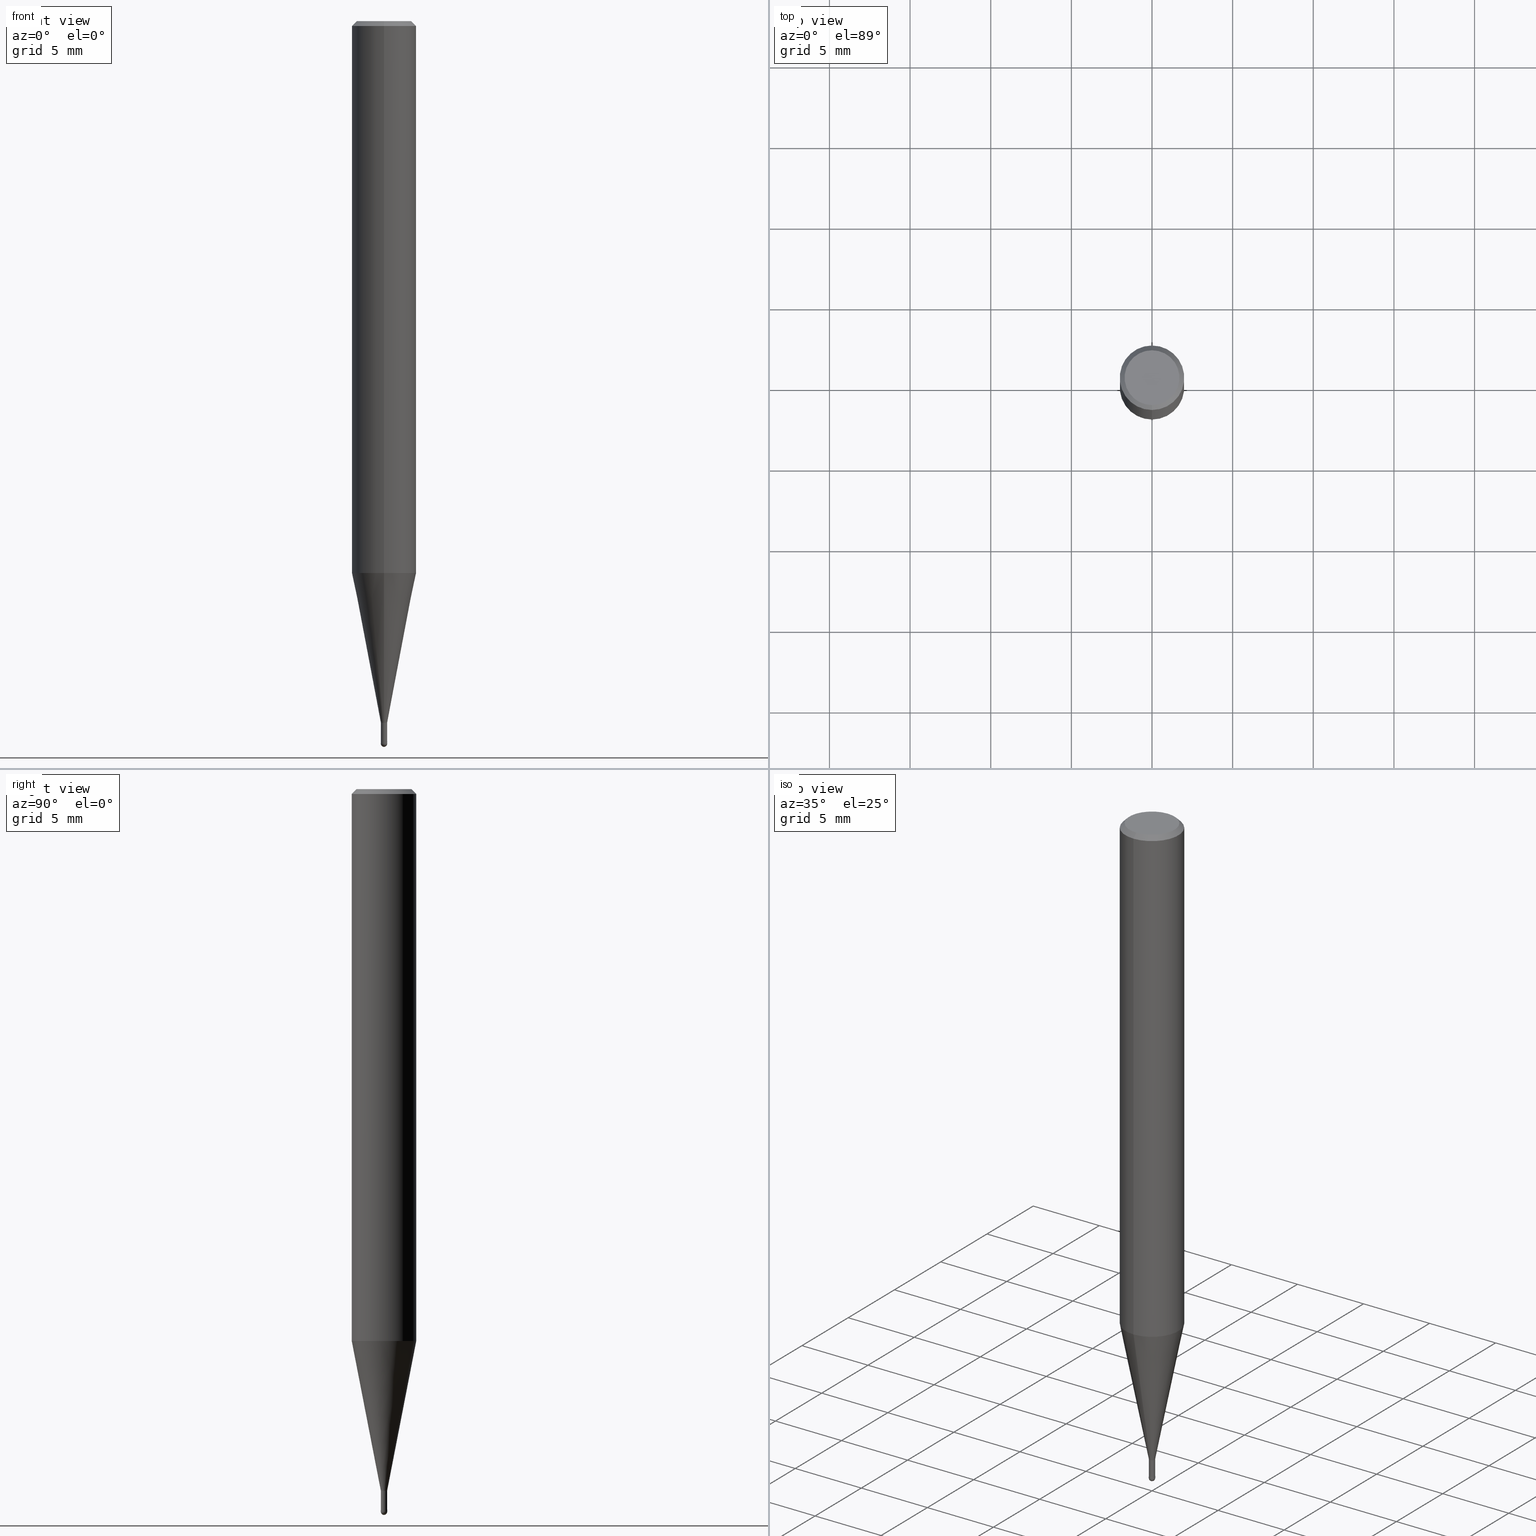
[diagram: canonical four-view strip — front | top / right | iso, engineering-drawing reading convention]
A machine part, canonical four-view strip (front | top / right | iso — engineering-drawing reading convention). The complete STEP part file that produces these views, byte-faithful:
ISO-10303-21;
HEADER;
FILE_DESCRIPTION(('no description'),'unknown implementation level');
FILE_NAME('CSELB2004-015-Huellk.stp','  ',('CIMSOURCE GmbH'),('CADClick - KiM GmbH - www.kimweb.de'),'unknown preprocess','ACIS','unknown authorization');
FILE_SCHEMA(('automotive_design'));
ENDSEC;
DATA;
#1=MECHANICAL_DESIGN_GEOMETRIC_PRESENTATION_REPRESENTATION(' ',(#14,#15,#16,#17,#18,#19,#20,#21,#22,#23,#24,#25,#26,#27,#28,#29,#30,#31,#32,#33,#34,#35,#36,#37,#38,#39,#40,#41,#42,#43,#44,#45,#46,#47,#48,#49,#50,#51,#52,#53,#54,#55,#56,#57,#58,#59,#60,#61,#62,#63,#64,#65,#66,#67,#68,#69,#70,#71,#72,#73,#74),#10);
#2=PRODUCT_DEFINITION_CONTEXT('',#75,'design');
#3=APPLICATION_PROTOCOL_DEFINITION('INTERNATIONAL STANDARD','automotive_design',1994,#75);
#4=PRODUCT_CATEGORY_RELATIONSHIP('NONE','NONE',#76,#77);
#5=SHAPE_DEFINITION_REPRESENTATION(#78,#79);
#6=PRODUCT_DEFINITION_CONTEXT('',#80,'design');
#7=APPLICATION_PROTOCOL_DEFINITION('INTERNATIONAL STANDARD','automotive_design',1994,#80);
#8=PRODUCT_CATEGORY_RELATIONSHIP('NONE','NONE',#81,#82);
#9=SHAPE_DEFINITION_REPRESENTATION(#83,#84);
#10= (GEOMETRIC_REPRESENTATION_CONTEXT(3)GLOBAL_UNCERTAINTY_ASSIGNED_CONTEXT((#87))GLOBAL_UNIT_ASSIGNED_CONTEXT((#89,#90,#91))REPRESENTATION_CONTEXT('NONE','WORKSPACE'));
#14=STYLED_ITEM('',(#93),#94);
#15=STYLED_ITEM('',(#95),#96);
#16=STYLED_ITEM('',(#97),#98);
#17=STYLED_ITEM('',(#99),#100);
#18=STYLED_ITEM('',(#101),#102);
#19=STYLED_ITEM('',(#103),#104);
#20=STYLED_ITEM('',(#105),#106);
#21=STYLED_ITEM('',(#107),#108);
#22=STYLED_ITEM('',(#109),#110);
#23=STYLED_ITEM('',(#111),#112);
#24=STYLED_ITEM('',(#113),#114);
#25=STYLED_ITEM('',(#115),#116);
#26=STYLED_ITEM('',(#117),#118);
#27=STYLED_ITEM('',(#119),#120);
#28=STYLED_ITEM('',(#121),#122);
#29=STYLED_ITEM('',(#123),#124);
#30=STYLED_ITEM('',(#125),#126);
#31=STYLED_ITEM('',(#127),#128);
#32=STYLED_ITEM('',(#129),#130);
#33=STYLED_ITEM('',(#131),#132);
#34=STYLED_ITEM('',(#133),#134);
#35=STYLED_ITEM('',(#135),#136);
#36=STYLED_ITEM('',(#137),#138);
#37=STYLED_ITEM('',(#139),#140);
#38=STYLED_ITEM('',(#141),#142);
#39=STYLED_ITEM('',(#143),#144);
#40=STYLED_ITEM('',(#145),#146);
#41=STYLED_ITEM('',(#147),#148);
#42=STYLED_ITEM('',(#149),#150);
#43=STYLED_ITEM('',(#151),#152);
#44=STYLED_ITEM('',(#153),#154);
#45=STYLED_ITEM('',(#155),#156);
#46=STYLED_ITEM('',(#157),#158);
#47=STYLED_ITEM('',(#159),#160);
#48=STYLED_ITEM('',(#161),#162);
#49=STYLED_ITEM('',(#163),#164);
#50=STYLED_ITEM('',(#165),#166);
#51=STYLED_ITEM('',(#167),#168);
#52=STYLED_ITEM('',(#169),#170);
#53=STYLED_ITEM('',(#171),#172);
#54=STYLED_ITEM('',(#173),#174);
#55=STYLED_ITEM('',(#175),#176);
#56=STYLED_ITEM('',(#177),#178);
#57=STYLED_ITEM('',(#179),#180);
#58=STYLED_ITEM('',(#181),#182);
#59=STYLED_ITEM('',(#183),#184);
#60=STYLED_ITEM('',(#185),#186);
#61=STYLED_ITEM('',(#187),#188);
#62=STYLED_ITEM('',(#189),#190);
#63=STYLED_ITEM('',(#191),#192);
#64=STYLED_ITEM('',(#193),#194);
#65=STYLED_ITEM('',(#195),#196);
#66=STYLED_ITEM('',(#197),#198);
#67=STYLED_ITEM('',(#199),#200);
#68=STYLED_ITEM('',(#201),#202);
#69=STYLED_ITEM('',(#203),#204);
#70=STYLED_ITEM('',(#205),#206);
#71=STYLED_ITEM('',(#207),#208);
#72=STYLED_ITEM('',(#209),#210);
#73=STYLED_ITEM('',(#211),#212);
#74=STYLED_ITEM('',(#213),#214);
#75=APPLICATION_CONTEXT(' ');
#76=PRODUCT_CATEGORY('part','NONE');
#77=PRODUCT_RELATED_PRODUCT_CATEGORY('detail',' ',(#215));
#78=PRODUCT_DEFINITION_SHAPE('NONE','NONE',#216);
#79=ADVANCED_BREP_SHAPE_REPRESENTATION('1',(#128,#217),#10);
#80=APPLICATION_CONTEXT(' ');
#81=PRODUCT_CATEGORY('part','NONE');
#82=PRODUCT_RELATED_PRODUCT_CATEGORY('detail',' ',(#218));
#83=PRODUCT_DEFINITION_SHAPE('NONE','NONE',#219);
#84=ADVANCED_BREP_SHAPE_REPRESENTATION('2',(#176,#220),#10);
#87=UNCERTAINTY_MEASURE_WITH_UNIT(LENGTH_MEASURE(1.0E-006),#89,'','');
#89= (CONVERSION_BASED_UNIT('MILLIMETRE',#223)LENGTH_UNIT()NAMED_UNIT(#226));
#90= (NAMED_UNIT(#228)PLANE_ANGLE_UNIT()SI_UNIT($,.RADIAN.));
#91= (NAMED_UNIT(#228)SOLID_ANGLE_UNIT()SI_UNIT($,.STERADIAN.));
#93=PRESENTATION_STYLE_ASSIGNMENT((#234));
#94=VERTEX_POINT('',#235);
#95=PRESENTATION_STYLE_ASSIGNMENT((#236));
#96=EDGE_CURVE('',#136,#120,#237,.T.);
#97=PRESENTATION_STYLE_ASSIGNMENT((#238));
#98=EDGE_CURVE('',#140,#166,#239,.T.);
#99=PRESENTATION_STYLE_ASSIGNMENT((#240));
#100=ADVANCED_FACE('',(#241,#242),#243,.T.);
#101=PRESENTATION_STYLE_ASSIGNMENT((#244));
#102=VERTEX_POINT('',#245);
#103=PRESENTATION_STYLE_ASSIGNMENT((#246));
#104=ADVANCED_FACE('',(#247),#248,.T.);
#105=PRESENTATION_STYLE_ASSIGNMENT((#249));
#106=EDGE_CURVE('',#150,#120,#250,.T.);
#107=PRESENTATION_STYLE_ASSIGNMENT((#251));
#108=EDGE_CURVE('',#94,#168,#252,.T.);
#109=PRESENTATION_STYLE_ASSIGNMENT((#253));
#110=ADVANCED_FACE('',(#254),#255,.T.);
#111=PRESENTATION_STYLE_ASSIGNMENT((#256));
#112=EDGE_CURVE('',#188,#140,#257,.T.);
#113=PRESENTATION_STYLE_ASSIGNMENT((#258));
#114=ADVANCED_FACE('',(#259),#260,.T.);
#115=PRESENTATION_STYLE_ASSIGNMENT((#261));
#116=EDGE_CURVE('',#136,#152,#262,.T.);
#117=PRESENTATION_STYLE_ASSIGNMENT((#263));
#118=EDGE_CURVE('',#102,#206,#264,.T.);
#119=PRESENTATION_STYLE_ASSIGNMENT((#265));
#120=VERTEX_POINT('',#266);
#121=PRESENTATION_STYLE_ASSIGNMENT((#267));
#122=EDGE_CURVE('',#162,#182,#268,.T.);
#123=PRESENTATION_STYLE_ASSIGNMENT((#269));
#124=ADVANCED_FACE('',(#270),#271,.T.);
#125=PRESENTATION_STYLE_ASSIGNMENT((#272));
#126=ADVANCED_FACE('',(#273),#274,.T.);
#127=PRESENTATION_STYLE_ASSIGNMENT((#275));
#128=MANIFOLD_SOLID_BREP('1',#276);
#129=PRESENTATION_STYLE_ASSIGNMENT((#277));
#130=EDGE_CURVE('',#206,#102,#278,.T.);
#131=PRESENTATION_STYLE_ASSIGNMENT((#279));
#132=ADVANCED_FACE('',(#280),#281,.T.);
#133=PRESENTATION_STYLE_ASSIGNMENT((#282));
#134=ADVANCED_FACE('',(#283),#284,.T.);
#135=PRESENTATION_STYLE_ASSIGNMENT((#285));
#136=VERTEX_POINT('',#286);
#137=PRESENTATION_STYLE_ASSIGNMENT((#287));
#138=ADVANCED_FACE('',(#288),#289,.T.);
#139=PRESENTATION_STYLE_ASSIGNMENT((#290));
#140=VERTEX_POINT('',#291);
#141=PRESENTATION_STYLE_ASSIGNMENT((#292));
#142=EDGE_CURVE('',#186,#200,#293,.T.);
#143=PRESENTATION_STYLE_ASSIGNMENT((#294));
#144=VERTEX_POINT('',#295);
#145=PRESENTATION_STYLE_ASSIGNMENT((#296));
#146=EDGE_CURVE('',#120,#206,#297,.T.);
#147=PRESENTATION_STYLE_ASSIGNMENT((#298));
#148=ADVANCED_FACE('',(#299),#300,.T.);
#149=PRESENTATION_STYLE_ASSIGNMENT((#301));
#150=VERTEX_POINT('',#302);
#151=PRESENTATION_STYLE_ASSIGNMENT((#303));
#152=VERTEX_POINT('',#304);
#153=PRESENTATION_STYLE_ASSIGNMENT((#305));
#154=EDGE_CURVE('',#150,#152,#306,.T.);
#155=PRESENTATION_STYLE_ASSIGNMENT((#307));
#156=ADVANCED_FACE('',(#308),#309,.T.);
#157=PRESENTATION_STYLE_ASSIGNMENT((#310));
#158=EDGE_CURVE('',#166,#140,#311,.T.);
#159=PRESENTATION_STYLE_ASSIGNMENT((#312));
#160=EDGE_CURVE('',#182,#162,#313,.T.);
#161=PRESENTATION_STYLE_ASSIGNMENT((#314));
#162=VERTEX_POINT('',#315);
#163=PRESENTATION_STYLE_ASSIGNMENT((#316));
#164=EDGE_CURVE('',#144,#188,#317,.T.);
#165=PRESENTATION_STYLE_ASSIGNMENT((#318));
#166=VERTEX_POINT('',#319);
#167=PRESENTATION_STYLE_ASSIGNMENT((#320));
#168=VERTEX_POINT('',#321);
#169=PRESENTATION_STYLE_ASSIGNMENT((#322));
#170=EDGE_CURVE('',#102,#150,#323,.T.);
#171=PRESENTATION_STYLE_ASSIGNMENT((#324));
#172=EDGE_CURVE('',#188,#144,#325,.T.);
#173=PRESENTATION_STYLE_ASSIGNMENT((#326));
#174=ADVANCED_FACE('',(#327),#328,.T.);
#175=PRESENTATION_STYLE_ASSIGNMENT((#329));
#176=MANIFOLD_SOLID_BREP('2',#330);
#177=PRESENTATION_STYLE_ASSIGNMENT((#331));
#178=ADVANCED_FACE('',(#332),#333,.T.);
#179=PRESENTATION_STYLE_ASSIGNMENT((#334));
#180=EDGE_CURVE('',#166,#144,#335,.T.);
#181=PRESENTATION_STYLE_ASSIGNMENT((#336));
#182=VERTEX_POINT('',#337);
#183=PRESENTATION_STYLE_ASSIGNMENT((#338));
#184=EDGE_CURVE('',#152,#136,#339,.T.);
#185=PRESENTATION_STYLE_ASSIGNMENT((#340));
#186=VERTEX_POINT('',#341);
#187=PRESENTATION_STYLE_ASSIGNMENT((#342));
#188=VERTEX_POINT('',#343);
#189=PRESENTATION_STYLE_ASSIGNMENT((#344));
#190=ADVANCED_FACE('',(#345),#346,.T.);
#191=PRESENTATION_STYLE_ASSIGNMENT((#347));
#192=EDGE_CURVE('',#200,#186,#348,.T.);
#193=PRESENTATION_STYLE_ASSIGNMENT((#349));
#194=EDGE_CURVE('',#120,#150,#350,.T.);
#195=PRESENTATION_STYLE_ASSIGNMENT((#351));
#196=EDGE_CURVE('',#94,#186,#352,.T.);
#197=PRESENTATION_STYLE_ASSIGNMENT((#353));
#198=ADVANCED_FACE('',(#354),#355,.T.);
#199=PRESENTATION_STYLE_ASSIGNMENT((#356));
#200=VERTEX_POINT('',#357);
#201=PRESENTATION_STYLE_ASSIGNMENT((#358));
#202=ADVANCED_FACE('',(#359),#360,.T.);
#203=PRESENTATION_STYLE_ASSIGNMENT((#361));
#204=EDGE_CURVE('',#200,#186,#362,.T.);
#205=PRESENTATION_STYLE_ASSIGNMENT((#363));
#206=VERTEX_POINT('',#364);
#207=PRESENTATION_STYLE_ASSIGNMENT((#365));
#208=EDGE_CURVE('',#162,#166,#366,.T.);
#209=PRESENTATION_STYLE_ASSIGNMENT((#367));
#210=EDGE_CURVE('',#168,#94,#368,.T.);
#211=PRESENTATION_STYLE_ASSIGNMENT((#369));
#212=EDGE_CURVE('',#140,#182,#370,.T.);
#213=PRESENTATION_STYLE_ASSIGNMENT((#371));
#214=EDGE_CURVE('',#200,#168,#372,.T.);
#215=PRODUCT('1','1','PART-1-DESC',(#373));
#216=PRODUCT_DEFINITION('NONE','NONE',#374,#2);
#217=AXIS2_PLACEMENT_3D('',#375,#376,#377);
#218=PRODUCT('2','2','PART-2-DESC',(#378));
#219=PRODUCT_DEFINITION('NONE','NONE',#379,#6);
#220=AXIS2_PLACEMENT_3D('',#380,#381,#382);
#223=LENGTH_MEASURE_WITH_UNIT(LENGTH_MEASURE(1.0),#383);
#226=DIMENSIONAL_EXPONENTS(1.0,0.0,0.0,0.0,0.0,0.0,0.0);
#228=DIMENSIONAL_EXPONENTS(0.0,0.0,0.0,0.0,0.0,0.0,0.0);
#234=POINT_STYLE(' ',#384,POSITIVE_LENGTH_MEASURE(1.0E-006),#385);
#235=CARTESIAN_POINT('',(0.0,0.1999,-44.68));
#236=CURVE_STYLE('',#386,POSITIVE_LENGTH_MEASURE(1.0E-006),#387);
#237=LINE('',#388,#389);
#238=CURVE_STYLE('',#390,POSITIVE_LENGTH_MEASURE(1.0E-006),#391);
#239=CIRCLE('',#392,2.0);
#240=SURFACE_STYLE_USAGE(.BOTH.,#393);
#241=FACE_OUTER_BOUND('',#394,.T.);
#242=FACE_BOUND('',#395,.T.);
#243=PLANE('',#396);
#244=POINT_STYLE(' ',#397,POSITIVE_LENGTH_MEASURE(1.0E-006),#398);
#245=CARTESIAN_POINT('',(2.38737008677672E-017,-0.19495,-44.68));
#246=SURFACE_STYLE_USAGE(.BOTH.,#399);
#247=FACE_OUTER_BOUND('',#400,.T.);
#248=SPHERICAL_SURFACE('',#401,0.2);
#249=CURVE_STYLE('',#402,POSITIVE_LENGTH_MEASURE(1.0E-006),#403);
#250=CIRCLE('',#404,0.19495);
#251=CURVE_STYLE('',#405,POSITIVE_LENGTH_MEASURE(1.0E-006),#406);
#252=CIRCLE('',#407,0.1999);
#253=SURFACE_STYLE_USAGE(.BOTH.,#408);
#254=FACE_OUTER_BOUND('',#409,.T.);
#255=PLANE('',#410);
#256=CURVE_STYLE('',#411,POSITIVE_LENGTH_MEASURE(1.0E-006),#412);
#257=LINE('',#413,#414);
#258=SURFACE_STYLE_USAGE(.BOTH.,#415);
#259=FACE_OUTER_BOUND('',#416,.T.);
#260=CYLINDRICAL_SURFACE('',#417,0.19495);
#261=CURVE_STYLE('',#418,POSITIVE_LENGTH_MEASURE(1.0E-006),#419);
#262=CIRCLE('',#420,1.99995);
#263=CURVE_STYLE('',#421,POSITIVE_LENGTH_MEASURE(1.0E-006),#422);
#264=CIRCLE('',#423,0.19495);
#265=POINT_STYLE(' ',#424,POSITIVE_LENGTH_MEASURE(1.0E-006),#425);
#266=CARTESIAN_POINT('',(0.0,0.19495,-43.5));
#267=CURVE_STYLE('',#426,POSITIVE_LENGTH_MEASURE(1.0E-006),#427);
#268=CIRCLE('',#428,1.7);
#269=SURFACE_STYLE_USAGE(.BOTH.,#429);
#270=FACE_OUTER_BOUND('',#430,.T.);
#271=PLANE('',#431);
#272=SURFACE_STYLE_USAGE(.BOTH.,#432);
#273=FACE_OUTER_BOUND('',#433,.T.);
#274=CONICAL_SURFACE('',#434,1.85,0.785398163397453);
#275=SURFACE_STYLE_USAGE(.BOTH.,#435);
#276=CLOSED_SHELL('',(#190,#178,#134,#126,#100,#148,#156,#138,#198,#114,#110));
#277=CURVE_STYLE('',#436,POSITIVE_LENGTH_MEASURE(1.0E-006),#437);
#278=CIRCLE('',#438,0.19495);
#279=SURFACE_STYLE_USAGE(.BOTH.,#439);
#280=FACE_OUTER_BOUND('',#440,.T.);
#281=CONICAL_SURFACE('',#441,0.19995,0.000833333140432319);
#282=SURFACE_STYLE_USAGE(.BOTH.,#442);
#283=FACE_OUTER_BOUND('',#443,.T.);
#284=CYLINDRICAL_SURFACE('',#444,2.0);
#285=POINT_STYLE(' ',#445,POSITIVE_LENGTH_MEASURE(1.0E-006),#446);
#286=CARTESIAN_POINT('',(0.0,1.99995,-34.214));
#287=SURFACE_STYLE_USAGE(.BOTH.,#447);
#288=FACE_OUTER_BOUND('',#448,.T.);
#289=CYLINDRICAL_SURFACE('',#449,2.0);
#290=POINT_STYLE(' ',#450,POSITIVE_LENGTH_MEASURE(1.0E-006),#451);
#291=CARTESIAN_POINT('',(2.44921270764475E-016,-2.0,-0.299999999999997));
#292=CURVE_STYLE('',#452,POSITIVE_LENGTH_MEASURE(1.0E-006),#453);
#293=CIRCLE('',#454,0.2);
#294=POINT_STYLE(' ',#455,POSITIVE_LENGTH_MEASURE(1.0E-006),#456);
#295=CARTESIAN_POINT('',(0.0,2.0,-34.214));
#296=CURVE_STYLE('',#457,POSITIVE_LENGTH_MEASURE(1.0E-006),#458);
#297=LINE('',#459,#460);
#298=SURFACE_STYLE_USAGE(.BOTH.,#461);
#299=FACE_OUTER_BOUND('',#462,.T.);
#300=PLANE('',#463);
#301=POINT_STYLE(' ',#464,POSITIVE_LENGTH_MEASURE(1.0E-006),#465);
#302=CARTESIAN_POINT('',(2.38737008677672E-017,-0.19495,-43.5));
#303=POINT_STYLE(' ',#466,POSITIVE_LENGTH_MEASURE(1.0E-006),#467);
#304=CARTESIAN_POINT('',(2.44915147732706E-016,-1.99995,-34.214));
#305=CURVE_STYLE('',#468,POSITIVE_LENGTH_MEASURE(1.0E-006),#469);
#306=LINE('',#470,#471);
#307=SURFACE_STYLE_USAGE(.BOTH.,#472);
#308=FACE_OUTER_BOUND('',#473,.T.);
#309=CONICAL_SURFACE('',#474,1.85,0.785398163397453);
#310=CURVE_STYLE('',#475,POSITIVE_LENGTH_MEASURE(1.0E-006),#476);
#311=CIRCLE('',#477,2.0);
#312=CURVE_STYLE('',#478,POSITIVE_LENGTH_MEASURE(1.0E-006),#479);
#313=CIRCLE('',#480,1.7);
#314=POINT_STYLE(' ',#481,POSITIVE_LENGTH_MEASURE(1.0E-006),#482);
#315=CARTESIAN_POINT('',(0.0,1.7,0.0));
#316=CURVE_STYLE('',#483,POSITIVE_LENGTH_MEASURE(1.0E-006),#484);
#317=CIRCLE('',#485,2.0);
#318=POINT_STYLE(' ',#486,POSITIVE_LENGTH_MEASURE(1.0E-006),#487);
#319=CARTESIAN_POINT('',(0.0,2.0,-0.299999999999997));
#320=POINT_STYLE(' ',#488,POSITIVE_LENGTH_MEASURE(1.0E-006),#489);
#321=CARTESIAN_POINT('',(2.44798810129093E-017,-0.1999,-44.68));
#322=CURVE_STYLE('',#490,POSITIVE_LENGTH_MEASURE(1.0E-006),#491);
#323=LINE('',#492,#493);
#324=CURVE_STYLE('',#494,POSITIVE_LENGTH_MEASURE(1.0E-006),#495);
#325=CIRCLE('',#496,2.0);
#326=SURFACE_STYLE_USAGE(.BOTH.,#497);
#327=FACE_OUTER_BOUND('',#498,.T.);
#328=SPHERICAL_SURFACE('',#499,0.2);
#329=SURFACE_STYLE_USAGE(.BOTH.,#500);
#330=CLOSED_SHELL('',(#104,#202,#124,#132,#174));
#331=SURFACE_STYLE_USAGE(.BOTH.,#501);
#332=FACE_OUTER_BOUND('',#502,.T.);
#333=CONICAL_SURFACE('',#503,1.09745,0.191984604054908);
#334=CURVE_STYLE('',#504,POSITIVE_LENGTH_MEASURE(1.0E-006),#505);
#335=LINE('',#506,#507);
#336=POINT_STYLE(' ',#508,POSITIVE_LENGTH_MEASURE(1.0E-006),#509);
#337=CARTESIAN_POINT('',(2.08183080149804E-016,-1.7,0.0));
#338=CURVE_STYLE('',#510,POSITIVE_LENGTH_MEASURE(1.0E-006),#511);
#339=CIRCLE('',#512,1.99995);
#340=POINT_STYLE(' ',#513,POSITIVE_LENGTH_MEASURE(1.0E-006),#514);
#341=CARTESIAN_POINT('',(0.0,0.2,-44.8));
#342=POINT_STYLE(' ',#515,POSITIVE_LENGTH_MEASURE(1.0E-006),#516);
#343=CARTESIAN_POINT('',(2.44921270764475E-016,-2.0,-34.214));
#344=SURFACE_STYLE_USAGE(.BOTH.,#517);
#345=FACE_OUTER_BOUND('',#518,.T.);
#346=CYLINDRICAL_SURFACE('',#519,0.19495);
#347=CURVE_STYLE('',#520,POSITIVE_LENGTH_MEASURE(1.0E-006),#521);
#348=CIRCLE('',#522,0.2);
#349=CURVE_STYLE('',#523,POSITIVE_LENGTH_MEASURE(1.0E-006),#524);
#350=CIRCLE('',#525,0.19495);
#351=CURVE_STYLE('',#526,POSITIVE_LENGTH_MEASURE(1.0E-006),#527);
#352=LINE('',#528,#529);
#353=SURFACE_STYLE_USAGE(.BOTH.,#530);
#354=FACE_OUTER_BOUND('',#531,.T.);
#355=CONICAL_SURFACE('',#532,1.09745,0.191984604054908);
#356=POINT_STYLE(' ',#533,POSITIVE_LENGTH_MEASURE(1.0E-006),#534);
#357=CARTESIAN_POINT('',(2.44921270764475E-017,-0.2,-44.8));
#358=SURFACE_STYLE_USAGE(.BOTH.,#535);
#359=FACE_OUTER_BOUND('',#536,.T.);
#360=CONICAL_SURFACE('',#537,0.19995,0.000833333140432319);
#361=CURVE_STYLE('',#538,POSITIVE_LENGTH_MEASURE(1.0E-006),#539);
#362=CIRCLE('',#540,0.2);
#363=POINT_STYLE(' ',#541,POSITIVE_LENGTH_MEASURE(1.0E-006),#542);
#364=CARTESIAN_POINT('',(0.0,0.19495,-44.68));
#365=CURVE_STYLE('',#543,POSITIVE_LENGTH_MEASURE(1.0E-006),#544);
#366=LINE('',#545,#546);
#367=CURVE_STYLE('',#547,POSITIVE_LENGTH_MEASURE(1.0E-006),#548);
#368=CIRCLE('',#549,0.1999);
#369=CURVE_STYLE('',#550,POSITIVE_LENGTH_MEASURE(1.0E-006),#551);
#370=LINE('',#552,#553);
#371=CURVE_STYLE('',#554,POSITIVE_LENGTH_MEASURE(1.0E-006),#555);
#372=LINE('',#556,#557);
#373=PRODUCT_CONTEXT('',#75,'mechanical');
#374=PRODUCT_DEFINITION_FORMATION_WITH_SPECIFIED_SOURCE(' ','NONE',#215,.NOT_KNOWN.);
#375=CARTESIAN_POINT('',(0.0,0.0,0.0));
#376=DIRECTION('',(0.0,0.0,1.0));
#377=DIRECTION('',(1.0,0.0,0.0));
#378=PRODUCT_CONTEXT('',#80,'mechanical');
#379=PRODUCT_DEFINITION_FORMATION_WITH_SPECIFIED_SOURCE(' ','NONE',#218,.NOT_KNOWN.);
#380=CARTESIAN_POINT('',(0.0,0.0,0.0));
#381=DIRECTION('',(0.0,0.0,1.0));
#382=DIRECTION('',(1.0,0.0,0.0));
#383= (NAMED_UNIT(#226)LENGTH_UNIT()SI_UNIT(.MILLI.,.METRE.));
#384=PRE_DEFINED_MARKER('');
#385=COLOUR_RGB('',0.800000011920929,0.800000011920929,0.800000011920929);
#386=DRAUGHTING_PRE_DEFINED_CURVE_FONT('continuous');
#387=COLOUR_RGB('',0.498039215803146,0.498039215803146,0.498039215803146);
#388=CARTESIAN_POINT('',(-1.34394424300237E-016,1.09745,-38.857));
#389=VECTOR('',#559,1.0);
#390=DRAUGHTING_PRE_DEFINED_CURVE_FONT('continuous');
#391=COLOUR_RGB('',0.498039215803146,0.498039215803146,0.498039215803146);
#392=AXIS2_PLACEMENT_3D('',#560,#561,#562);
#393=SURFACE_SIDE_STYLE('',(#563));
#394=EDGE_LOOP('',(#564,#565));
#395=EDGE_LOOP('',(#566,#567));
#396=AXIS2_PLACEMENT_3D('',#568,#569,#570);
#397=PRE_DEFINED_MARKER('');
#398=COLOUR_RGB('',0.498039215803146,0.498039215803146,0.498039215803146);
#399=SURFACE_SIDE_STYLE('',(#571));
#400=EDGE_LOOP('',(#572,#573));
#401=AXIS2_PLACEMENT_3D('',#574,#575,#576);
#402=DRAUGHTING_PRE_DEFINED_CURVE_FONT('continuous');
#403=COLOUR_RGB('',0.498039215803146,0.498039215803146,0.498039215803146);
#404=AXIS2_PLACEMENT_3D('',#577,#578,#579);
#405=DRAUGHTING_PRE_DEFINED_CURVE_FONT('continuous');
#406=COLOUR_RGB('',0.800000011920929,0.800000011920929,0.800000011920929);
#407=AXIS2_PLACEMENT_3D('',#580,#581,#582);
#408=SURFACE_SIDE_STYLE('',(#583));
#409=EDGE_LOOP('',(#584,#585));
#410=AXIS2_PLACEMENT_3D('',#586,#587,#588);
#411=DRAUGHTING_PRE_DEFINED_CURVE_FONT('continuous');
#412=COLOUR_RGB('',0.498039215803146,0.498039215803146,0.498039215803146);
#413=CARTESIAN_POINT('',(2.44921270764475E-016,-2.0,-17.257));
#414=VECTOR('',#589,1.0);
#415=SURFACE_SIDE_STYLE('',(#590));
#416=EDGE_LOOP('',(#591,#592,#593,#594));
#417=AXIS2_PLACEMENT_3D('',#595,#596,#597);
#418=DRAUGHTING_PRE_DEFINED_CURVE_FONT('continuous');
#419=COLOUR_RGB('',0.498039215803146,0.498039215803146,0.498039215803146);
#420=AXIS2_PLACEMENT_3D('',#598,#599,#600);
#421=DRAUGHTING_PRE_DEFINED_CURVE_FONT('continuous');
#422=COLOUR_RGB('',0.498039215803146,0.498039215803146,0.498039215803146);
#423=AXIS2_PLACEMENT_3D('',#601,#602,#603);
#424=PRE_DEFINED_MARKER('');
#425=COLOUR_RGB('',0.498039215803146,0.498039215803146,0.498039215803146);
#426=DRAUGHTING_PRE_DEFINED_CURVE_FONT('continuous');
#427=COLOUR_RGB('',0.498039215803146,0.498039215803146,0.498039215803146);
#428=AXIS2_PLACEMENT_3D('',#604,#605,#606);
#429=SURFACE_SIDE_STYLE('',(#607));
#430=EDGE_LOOP('',(#608,#609));
#431=AXIS2_PLACEMENT_3D('',#610,#611,#612);
#432=SURFACE_SIDE_STYLE('',(#613));
#433=EDGE_LOOP('',(#614,#615,#616,#617));
#434=AXIS2_PLACEMENT_3D('',#618,#619,#620);
#435=SURFACE_SIDE_STYLE('',(#621));
#436=DRAUGHTING_PRE_DEFINED_CURVE_FONT('continuous');
#437=COLOUR_RGB('',0.498039215803146,0.498039215803146,0.498039215803146);
#438=AXIS2_PLACEMENT_3D('',#622,#623,#624);
#439=SURFACE_SIDE_STYLE('',(#625));
#440=EDGE_LOOP('',(#626,#627,#628,#629));
#441=AXIS2_PLACEMENT_3D('',#630,#631,#632);
#442=SURFACE_SIDE_STYLE('',(#633));
#443=EDGE_LOOP('',(#634,#635,#636,#637));
#444=AXIS2_PLACEMENT_3D('',#638,#639,#640);
#445=PRE_DEFINED_MARKER('');
#446=COLOUR_RGB('',0.498039215803146,0.498039215803146,0.498039215803146);
#447=SURFACE_SIDE_STYLE('',(#641));
#448=EDGE_LOOP('',(#642,#643,#644,#645));
#449=AXIS2_PLACEMENT_3D('',#646,#647,#648);
#450=PRE_DEFINED_MARKER('');
#451=COLOUR_RGB('',0.498039215803146,0.498039215803146,0.498039215803146);
#452=DRAUGHTING_PRE_DEFINED_CURVE_FONT('continuous');
#453=COLOUR_RGB('',0.800000011920929,0.800000011920929,0.800000011920929);
#454=AXIS2_PLACEMENT_3D('',#649,#650,#651);
#455=PRE_DEFINED_MARKER('');
#456=COLOUR_RGB('',0.498039215803146,0.498039215803146,0.498039215803146);
#457=DRAUGHTING_PRE_DEFINED_CURVE_FONT('continuous');
#458=COLOUR_RGB('',0.498039215803146,0.498039215803146,0.498039215803146);
#459=CARTESIAN_POINT('',(-2.38737008677672E-017,0.19495,-44.09));
#460=VECTOR('',#652,1.0);
#461=SURFACE_SIDE_STYLE('',(#653));
#462=EDGE_LOOP('',(#654,#655));
#463=AXIS2_PLACEMENT_3D('',#656,#657,#658);
#464=PRE_DEFINED_MARKER('');
#465=COLOUR_RGB('',0.498039215803146,0.498039215803146,0.498039215803146);
#466=PRE_DEFINED_MARKER('');
#467=COLOUR_RGB('',0.498039215803146,0.498039215803146,0.498039215803146);
#468=DRAUGHTING_PRE_DEFINED_CURVE_FONT('continuous');
#469=COLOUR_RGB('',0.498039215803146,0.498039215803146,0.498039215803146);
#470=CARTESIAN_POINT('',(1.34394424300237E-016,-1.09745,-38.857));
#471=VECTOR('',#659,1.0);
#472=SURFACE_SIDE_STYLE('',(#660));
#473=EDGE_LOOP('',(#661,#662,#663,#664));
#474=AXIS2_PLACEMENT_3D('',#665,#666,#667);
#475=DRAUGHTING_PRE_DEFINED_CURVE_FONT('continuous');
#476=COLOUR_RGB('',0.498039215803146,0.498039215803146,0.498039215803146);
#477=AXIS2_PLACEMENT_3D('',#668,#669,#670);
#478=DRAUGHTING_PRE_DEFINED_CURVE_FONT('continuous');
#479=COLOUR_RGB('',0.498039215803146,0.498039215803146,0.498039215803146);
#480=AXIS2_PLACEMENT_3D('',#671,#672,#673);
#481=PRE_DEFINED_MARKER('');
#482=COLOUR_RGB('',0.498039215803146,0.498039215803146,0.498039215803146);
#483=DRAUGHTING_PRE_DEFINED_CURVE_FONT('continuous');
#484=COLOUR_RGB('',0.498039215803146,0.498039215803146,0.498039215803146);
#485=AXIS2_PLACEMENT_3D('',#674,#675,#676);
#486=PRE_DEFINED_MARKER('');
#487=COLOUR_RGB('',0.498039215803146,0.498039215803146,0.498039215803146);
#488=PRE_DEFINED_MARKER('');
#489=COLOUR_RGB('',0.800000011920929,0.800000011920929,0.800000011920929);
#490=DRAUGHTING_PRE_DEFINED_CURVE_FONT('continuous');
#491=COLOUR_RGB('',0.498039215803146,0.498039215803146,0.498039215803146);
#492=CARTESIAN_POINT('',(2.38737008677672E-017,-0.19495,-44.09));
#493=VECTOR('',#677,1.0);
#494=DRAUGHTING_PRE_DEFINED_CURVE_FONT('continuous');
#495=COLOUR_RGB('',0.498039215803146,0.498039215803146,0.498039215803146);
#496=AXIS2_PLACEMENT_3D('',#678,#679,#680);
#497=SURFACE_SIDE_STYLE('',(#681));
#498=EDGE_LOOP('',(#682,#683));
#499=AXIS2_PLACEMENT_3D('',#684,#685,#686);
#500=SURFACE_SIDE_STYLE('',(#687));
#501=SURFACE_SIDE_STYLE('',(#688));
#502=EDGE_LOOP('',(#689,#690,#691,#692));
#503=AXIS2_PLACEMENT_3D('',#693,#694,#695);
#504=DRAUGHTING_PRE_DEFINED_CURVE_FONT('continuous');
#505=COLOUR_RGB('',0.498039215803146,0.498039215803146,0.498039215803146);
#506=CARTESIAN_POINT('',(-2.44921270764475E-016,2.0,-17.257));
#507=VECTOR('',#696,1.0);
#508=PRE_DEFINED_MARKER('');
#509=COLOUR_RGB('',0.498039215803146,0.498039215803146,0.498039215803146);
#510=DRAUGHTING_PRE_DEFINED_CURVE_FONT('continuous');
#511=COLOUR_RGB('',0.498039215803146,0.498039215803146,0.498039215803146);
#512=AXIS2_PLACEMENT_3D('',#697,#698,#699);
#513=PRE_DEFINED_MARKER('');
#514=COLOUR_RGB('',0.800000011920929,0.800000011920929,0.800000011920929);
#515=PRE_DEFINED_MARKER('');
#516=COLOUR_RGB('',0.498039215803146,0.498039215803146,0.498039215803146);
#517=SURFACE_SIDE_STYLE('',(#700));
#518=EDGE_LOOP('',(#701,#702,#703,#704));
#519=AXIS2_PLACEMENT_3D('',#705,#706,#707);
#520=DRAUGHTING_PRE_DEFINED_CURVE_FONT('continuous');
#521=COLOUR_RGB('',0.800000011920929,0.800000011920929,0.800000011920929);
#522=AXIS2_PLACEMENT_3D('',#708,#709,#710);
#523=DRAUGHTING_PRE_DEFINED_CURVE_FONT('continuous');
#524=COLOUR_RGB('',0.498039215803146,0.498039215803146,0.498039215803146);
#525=AXIS2_PLACEMENT_3D('',#711,#712,#713);
#526=DRAUGHTING_PRE_DEFINED_CURVE_FONT('continuous');
#527=COLOUR_RGB('',0.800000011920929,0.800000011920929,0.800000011920929);
#528=CARTESIAN_POINT('',(-2.44860040446784E-017,0.19995,-44.74));
#529=VECTOR('',#714,1.0);
#530=SURFACE_SIDE_STYLE('',(#715));
#531=EDGE_LOOP('',(#716,#717,#718,#719));
#532=AXIS2_PLACEMENT_3D('',#720,#721,#722);
#533=PRE_DEFINED_MARKER('');
#534=COLOUR_RGB('',0.800000011920929,0.800000011920929,0.800000011920929);
#535=SURFACE_SIDE_STYLE('',(#723));
#536=EDGE_LOOP('',(#724,#725,#726,#727));
#537=AXIS2_PLACEMENT_3D('',#728,#729,#730);
#538=DRAUGHTING_PRE_DEFINED_CURVE_FONT('continuous');
#539=COLOUR_RGB('',0.800000011920929,0.800000011920929,0.800000011920929);
#540=AXIS2_PLACEMENT_3D('',#731,#732,#733);
#541=PRE_DEFINED_MARKER('');
#542=COLOUR_RGB('',0.498039215803146,0.498039215803146,0.498039215803146);
#543=DRAUGHTING_PRE_DEFINED_CURVE_FONT('continuous');
#544=COLOUR_RGB('',0.498039215803146,0.498039215803146,0.498039215803146);
#545=CARTESIAN_POINT('',(-2.2655217545714E-016,1.85,-0.149999999999999));
#546=VECTOR('',#734,1.0);
#547=DRAUGHTING_PRE_DEFINED_CURVE_FONT('continuous');
#548=COLOUR_RGB('',0.800000011920929,0.800000011920929,0.800000011920929);
#549=AXIS2_PLACEMENT_3D('',#735,#736,#737);
#550=DRAUGHTING_PRE_DEFINED_CURVE_FONT('continuous');
#551=COLOUR_RGB('',0.498039215803146,0.498039215803146,0.498039215803146);
#552=CARTESIAN_POINT('',(2.2655217545714E-016,-1.85,-0.149999999999999));
#553=VECTOR('',#738,1.0);
#554=DRAUGHTING_PRE_DEFINED_CURVE_FONT('continuous');
#555=COLOUR_RGB('',0.800000011920929,0.800000011920929,0.800000011920929);
#556=CARTESIAN_POINT('',(2.44860040446784E-017,-0.19995,-44.74));
#557=VECTOR('',#739,1.0);
#559=DIRECTION('',(2.33663968307108E-017,-0.190807411359389,-0.981627491348082));
#560=CARTESIAN_POINT('',(0.0,0.0,-0.299999999999997));
#561=DIRECTION('',(0.0,0.0,-1.0));
#562=DIRECTION('',(0.0,1.0,0.0));
#563=SURFACE_STYLE_FILL_AREA(#740);
#564=ORIENTED_EDGE('',*,*,#164,.T.);
#565=ORIENTED_EDGE('',*,*,#172,.T.);
#566=ORIENTED_EDGE('',*,*,#116,.F.);
#567=ORIENTED_EDGE('',*,*,#184,.F.);
#568=CARTESIAN_POINT('',(0.0,1.0,-34.214));
#569=DIRECTION('',(0.0,0.0,-1.0));
#570=DIRECTION('',(0.0,1.0,0.0));
#571=SURFACE_STYLE_FILL_AREA(#741);
#572=ORIENTED_EDGE('',*,*,#192,.F.);
#573=ORIENTED_EDGE('',*,*,#204,.T.);
#574=CARTESIAN_POINT('',(0.0,0.0,-44.8));
#575=DIRECTION('',(0.0,1.0,0.0));
#576=DIRECTION('',(0.0,0.0,-1.0));
#577=CARTESIAN_POINT('',(0.0,0.0,-43.5));
#578=DIRECTION('',(0.0,0.0,-1.0));
#579=DIRECTION('',(0.0,1.0,0.0));
#580=CARTESIAN_POINT('',(0.0,0.0,-44.68));
#581=DIRECTION('',(0.0,0.0,-1.0));
#582=DIRECTION('',(0.0,1.0,0.0));
#583=SURFACE_STYLE_FILL_AREA(#742);
#584=ORIENTED_EDGE('',*,*,#130,.T.);
#585=ORIENTED_EDGE('',*,*,#118,.T.);
#586=CARTESIAN_POINT('',(0.0,0.097475,-44.68));
#587=DIRECTION('',(0.0,0.0,-1.0));
#588=DIRECTION('',(0.0,1.0,0.0));
#589=DIRECTION('',(-0.0,-0.0,1.0));
#590=SURFACE_STYLE_FILL_AREA(#743);
#591=ORIENTED_EDGE('',*,*,#146,.T.);
#592=ORIENTED_EDGE('',*,*,#118,.F.);
#593=ORIENTED_EDGE('',*,*,#170,.T.);
#594=ORIENTED_EDGE('',*,*,#106,.T.);
#595=CARTESIAN_POINT('',(0.0,0.0,-44.09));
#596=DIRECTION('',(-0.0,-0.0,1.0));
#597=DIRECTION('',(0.0,1.0,0.0));
#598=CARTESIAN_POINT('',(0.0,0.0,-34.214));
#599=DIRECTION('',(0.0,0.0,-1.0));
#600=DIRECTION('',(0.0,1.0,0.0));
#601=CARTESIAN_POINT('',(0.0,0.0,-44.68));
#602=DIRECTION('',(0.0,0.0,-1.0));
#603=DIRECTION('',(0.0,1.0,0.0));
#604=CARTESIAN_POINT('',(0.0,0.0,0.0));
#605=DIRECTION('',(0.0,0.0,-1.0));
#606=DIRECTION('',(0.0,1.0,0.0));
#607=SURFACE_STYLE_FILL_AREA(#744);
#608=ORIENTED_EDGE('',*,*,#108,.F.);
#609=ORIENTED_EDGE('',*,*,#210,.F.);
#610=CARTESIAN_POINT('',(0.0,0.09995,-44.68));
#611=DIRECTION('',(-0.0,0.0,1.0));
#612=DIRECTION('',(0.0,-1.0,0.0));
#613=SURFACE_STYLE_FILL_AREA(#745);
#614=ORIENTED_EDGE('',*,*,#208,.F.);
#615=ORIENTED_EDGE('',*,*,#122,.T.);
#616=ORIENTED_EDGE('',*,*,#212,.F.);
#617=ORIENTED_EDGE('',*,*,#158,.F.);
#618=CARTESIAN_POINT('',(0.0,0.0,-0.149999999999999));
#619=DIRECTION('',(0.0,-0.0,-1.0));
#620=DIRECTION('',(0.0,1.0,0.0));
#621=SURFACE_STYLE_FILL_AREA(#746);
#622=CARTESIAN_POINT('',(0.0,0.0,-44.68));
#623=DIRECTION('',(0.0,0.0,-1.0));
#624=DIRECTION('',(0.0,1.0,0.0));
#625=SURFACE_STYLE_FILL_AREA(#747);
#626=ORIENTED_EDGE('',*,*,#196,.T.);
#627=ORIENTED_EDGE('',*,*,#204,.F.);
#628=ORIENTED_EDGE('',*,*,#214,.T.);
#629=ORIENTED_EDGE('',*,*,#210,.T.);
#630=CARTESIAN_POINT('',(0.0,0.0,-44.74));
#631=DIRECTION('',(0.0,-0.0,-1.0));
#632=DIRECTION('',(0.0,1.0,0.0));
#633=SURFACE_STYLE_FILL_AREA(#748);
#634=ORIENTED_EDGE('',*,*,#180,.F.);
#635=ORIENTED_EDGE('',*,*,#158,.T.);
#636=ORIENTED_EDGE('',*,*,#112,.F.);
#637=ORIENTED_EDGE('',*,*,#164,.F.);
#638=CARTESIAN_POINT('',(0.0,0.0,-17.257));
#639=DIRECTION('',(-0.0,-0.0,1.0));
#640=DIRECTION('',(0.0,1.0,0.0));
#641=SURFACE_STYLE_FILL_AREA(#749);
#642=ORIENTED_EDGE('',*,*,#180,.T.);
#643=ORIENTED_EDGE('',*,*,#172,.F.);
#644=ORIENTED_EDGE('',*,*,#112,.T.);
#645=ORIENTED_EDGE('',*,*,#98,.T.);
#646=CARTESIAN_POINT('',(0.0,0.0,-17.257));
#647=DIRECTION('',(-0.0,-0.0,1.0));
#648=DIRECTION('',(0.0,1.0,0.0));
#649=CARTESIAN_POINT('',(0.0,0.0,-44.8));
#650=DIRECTION('',(0.0,0.0,-1.0));
#651=DIRECTION('',(0.0,1.0,0.0));
#652=DIRECTION('',(0.0,0.0,-1.0));
#653=SURFACE_STYLE_FILL_AREA(#750);
#654=ORIENTED_EDGE('',*,*,#122,.F.);
#655=ORIENTED_EDGE('',*,*,#160,.F.);
#656=CARTESIAN_POINT('',(0.0,0.85,0.0));
#657=DIRECTION('',(-0.0,0.0,1.0));
#658=DIRECTION('',(0.0,-1.0,0.0));
#659=DIRECTION('',(2.33663968307108E-017,-0.190807411359389,0.981627491348082));
#660=SURFACE_STYLE_FILL_AREA(#751);
#661=ORIENTED_EDGE('',*,*,#208,.T.);
#662=ORIENTED_EDGE('',*,*,#98,.F.);
#663=ORIENTED_EDGE('',*,*,#212,.T.);
#664=ORIENTED_EDGE('',*,*,#160,.T.);
#665=CARTESIAN_POINT('',(0.0,0.0,-0.149999999999999));
#666=DIRECTION('',(0.0,-0.0,-1.0));
#667=DIRECTION('',(0.0,1.0,0.0));
#668=CARTESIAN_POINT('',(0.0,0.0,-0.299999999999997));
#669=DIRECTION('',(0.0,0.0,-1.0));
#670=DIRECTION('',(0.0,1.0,0.0));
#671=CARTESIAN_POINT('',(0.0,0.0,0.0));
#672=DIRECTION('',(0.0,0.0,-1.0));
#673=DIRECTION('',(0.0,1.0,0.0));
#674=CARTESIAN_POINT('',(0.0,0.0,-34.214));
#675=DIRECTION('',(0.0,0.0,-1.0));
#676=DIRECTION('',(0.0,1.0,0.0));
#677=DIRECTION('',(-0.0,-0.0,1.0));
#678=CARTESIAN_POINT('',(0.0,0.0,-34.214));
#679=DIRECTION('',(0.0,0.0,-1.0));
#680=DIRECTION('',(0.0,1.0,0.0));
#681=SURFACE_STYLE_FILL_AREA(#752);
#682=ORIENTED_EDGE('',*,*,#192,.T.);
#683=ORIENTED_EDGE('',*,*,#142,.T.);
#684=CARTESIAN_POINT('',(0.0,0.0,-44.8));
#685=DIRECTION('',(0.0,1.0,0.0));
#686=DIRECTION('',(0.0,0.0,-1.0));
#687=SURFACE_STYLE_FILL_AREA(#753);
#688=SURFACE_STYLE_FILL_AREA(#754);
#689=ORIENTED_EDGE('',*,*,#96,.F.);
#690=ORIENTED_EDGE('',*,*,#116,.T.);
#691=ORIENTED_EDGE('',*,*,#154,.F.);
#692=ORIENTED_EDGE('',*,*,#194,.F.);
#693=CARTESIAN_POINT('',(0.0,0.0,-38.857));
#694=DIRECTION('',(-0.0,-0.0,1.0));
#695=DIRECTION('',(0.0,1.0,0.0));
#696=DIRECTION('',(0.0,0.0,-1.0));
#697=CARTESIAN_POINT('',(0.0,0.0,-34.214));
#698=DIRECTION('',(0.0,0.0,-1.0));
#699=DIRECTION('',(0.0,1.0,0.0));
#700=SURFACE_STYLE_FILL_AREA(#755);
#701=ORIENTED_EDGE('',*,*,#146,.F.);
#702=ORIENTED_EDGE('',*,*,#194,.T.);
#703=ORIENTED_EDGE('',*,*,#170,.F.);
#704=ORIENTED_EDGE('',*,*,#130,.F.);
#705=CARTESIAN_POINT('',(0.0,0.0,-44.09));
#706=DIRECTION('',(-0.0,-0.0,1.0));
#707=DIRECTION('',(0.0,1.0,0.0));
#708=CARTESIAN_POINT('',(0.0,0.0,-44.8));
#709=DIRECTION('',(1.0,0.0,1.22460635382236E-016));
#710=DIRECTION('',(-1.22460635382236E-016,0.0,1.0));
#711=CARTESIAN_POINT('',(0.0,0.0,-43.5));
#712=DIRECTION('',(0.0,0.0,-1.0));
#713=DIRECTION('',(0.0,1.0,0.0));
#714=DIRECTION('',(-1.02050494051022E-019,0.000833333043981772,-0.999999652777959));
#715=SURFACE_STYLE_FILL_AREA(#756);
#716=ORIENTED_EDGE('',*,*,#96,.T.);
#717=ORIENTED_EDGE('',*,*,#106,.F.);
#718=ORIENTED_EDGE('',*,*,#154,.T.);
#719=ORIENTED_EDGE('',*,*,#184,.T.);
#720=CARTESIAN_POINT('',(0.0,0.0,-38.857));
#721=DIRECTION('',(-0.0,-0.0,1.0));
#722=DIRECTION('',(0.0,1.0,0.0));
#723=SURFACE_STYLE_FILL_AREA(#757);
#724=ORIENTED_EDGE('',*,*,#196,.F.);
#725=ORIENTED_EDGE('',*,*,#108,.T.);
#726=ORIENTED_EDGE('',*,*,#214,.F.);
#727=ORIENTED_EDGE('',*,*,#142,.F.);
#728=CARTESIAN_POINT('',(0.0,0.0,-44.74));
#729=DIRECTION('',(0.0,-0.0,-1.0));
#730=DIRECTION('',(0.0,1.0,0.0));
#731=CARTESIAN_POINT('',(0.0,0.0,-44.8));
#732=DIRECTION('',(0.0,0.0,-1.0));
#733=DIRECTION('',(0.0,1.0,0.0));
#734=DIRECTION('',(-8.6592745707194E-017,0.707106781186551,-0.707106781186544));
#735=CARTESIAN_POINT('',(0.0,0.0,-44.68));
#736=DIRECTION('',(0.0,0.0,-1.0));
#737=DIRECTION('',(0.0,1.0,0.0));
#738=DIRECTION('',(-8.6592745707194E-017,0.707106781186551,0.707106781186544));
#739=DIRECTION('',(-1.02050494051022E-019,0.000833333043981772,0.999999652777959));
#740=FILL_AREA_STYLE('',(#758));
#741=FILL_AREA_STYLE('',(#759));
#742=FILL_AREA_STYLE('',(#760));
#743=FILL_AREA_STYLE('',(#761));
#744=FILL_AREA_STYLE('',(#762));
#745=FILL_AREA_STYLE('',(#763));
#746=FILL_AREA_STYLE('',(#764));
#747=FILL_AREA_STYLE('',(#765));
#748=FILL_AREA_STYLE('',(#766));
#749=FILL_AREA_STYLE('',(#767));
#750=FILL_AREA_STYLE('',(#768));
#751=FILL_AREA_STYLE('',(#769));
#752=FILL_AREA_STYLE('',(#770));
#753=FILL_AREA_STYLE('',(#771));
#754=FILL_AREA_STYLE('',(#772));
#755=FILL_AREA_STYLE('',(#773));
#756=FILL_AREA_STYLE('',(#774));
#757=FILL_AREA_STYLE('',(#775));
#758=FILL_AREA_STYLE_COLOUR('',#776);
#759=FILL_AREA_STYLE_COLOUR('',#777);
#760=FILL_AREA_STYLE_COLOUR('',#778);
#761=FILL_AREA_STYLE_COLOUR('',#779);
#762=FILL_AREA_STYLE_COLOUR('',#780);
#763=FILL_AREA_STYLE_COLOUR('',#781);
#764=FILL_AREA_STYLE_COLOUR('',#782);
#765=FILL_AREA_STYLE_COLOUR('',#783);
#766=FILL_AREA_STYLE_COLOUR('',#784);
#767=FILL_AREA_STYLE_COLOUR('',#785);
#768=FILL_AREA_STYLE_COLOUR('',#786);
#769=FILL_AREA_STYLE_COLOUR('',#787);
#770=FILL_AREA_STYLE_COLOUR('',#788);
#771=FILL_AREA_STYLE_COLOUR('',#789);
#772=FILL_AREA_STYLE_COLOUR('',#790);
#773=FILL_AREA_STYLE_COLOUR('',#791);
#774=FILL_AREA_STYLE_COLOUR('',#792);
#775=FILL_AREA_STYLE_COLOUR('',#793);
#776=COLOUR_RGB('',0.498039215803146,0.498039215803146,0.498039215803146);
#777=COLOUR_RGB('',0.800000011920929,0.800000011920929,0.800000011920929);
#778=COLOUR_RGB('',0.498039215803146,0.498039215803146,0.498039215803146);
#779=COLOUR_RGB('',0.498039215803146,0.498039215803146,0.498039215803146);
#780=COLOUR_RGB('',0.800000011920929,0.800000011920929,0.800000011920929);
#781=COLOUR_RGB('',0.498039215803146,0.498039215803146,0.498039215803146);
#782=COLOUR_RGB('',0.498039215803146,0.498039215803146,0.498039215803146);
#783=COLOUR_RGB('',0.800000011920929,0.800000011920929,0.800000011920929);
#784=COLOUR_RGB('',0.498039215803146,0.498039215803146,0.498039215803146);
#785=COLOUR_RGB('',0.498039215803146,0.498039215803146,0.498039215803146);
#786=COLOUR_RGB('',0.498039215803146,0.498039215803146,0.498039215803146);
#787=COLOUR_RGB('',0.498039215803146,0.498039215803146,0.498039215803146);
#788=COLOUR_RGB('',0.800000011920929,0.800000011920929,0.800000011920929);
#789=COLOUR_RGB('',0.800000011920929,0.800000011920929,0.800000011920929);
#790=COLOUR_RGB('',0.498039215803146,0.498039215803146,0.498039215803146);
#791=COLOUR_RGB('',0.498039215803146,0.498039215803146,0.498039215803146);
#792=COLOUR_RGB('',0.498039215803146,0.498039215803146,0.498039215803146);
#793=COLOUR_RGB('',0.800000011920929,0.800000011920929,0.800000011920929);
#794=AXIS2_PLACEMENT_3D('PCS',#795,#796,#797);
#795=CARTESIAN_POINT('',(0.0,0.0,0.0));
#796=DIRECTION('',(0.0,0.0,1.0));
#797=DIRECTION('',(1.0,0.0,0.0));
#798=AXIS2_PLACEMENT_3D('CIP',#799,#800,#801);
#799=CARTESIAN_POINT('',(0.0,0.0,-45.0));
#800=DIRECTION('',(0.0,0.0,1.0));
#801=DIRECTION('',(1.0,0.0,0.0));
#802=AXIS2_PLACEMENT_3D('CRP',#803,#804,#805);
#803=CARTESIAN_POINT('',(-0.2,0.0,-45.0));
#804=DIRECTION('',(0.0,0.0,1.0));
#805=DIRECTION('',(1.0,0.0,0.0));
#806=AXIS2_PLACEMENT_3D('MCS',#807,#808,#809);
#807=CARTESIAN_POINT('',(0.0,0.0,-34.214));
#808=DIRECTION('',(0.0,0.0,1.0));
#809=DIRECTION('',(1.0,0.0,0.0));
#810=CONSTRUCTIVE_GEOMETRY_REPRESENTATION_RELATIONSHIP('coordinate systems',$,#79,#811);
#811=CONSTRUCTIVE_GEOMETRY_REPRESENTATION('coordinate systems',(#794,#798,#802,#806),#10);
ENDSEC;
END-ISO-10303-21;
